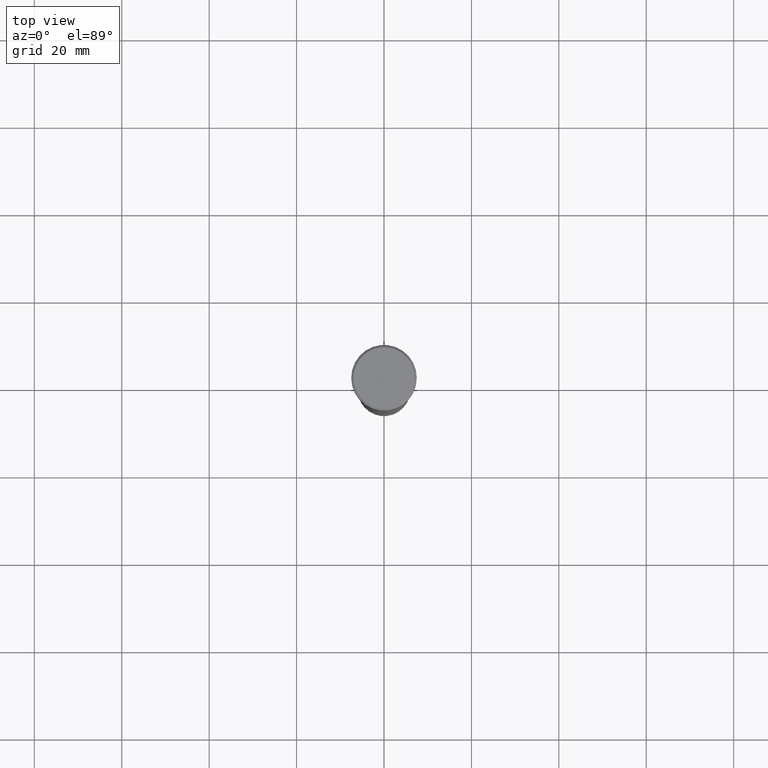
[diagram: clean part render]
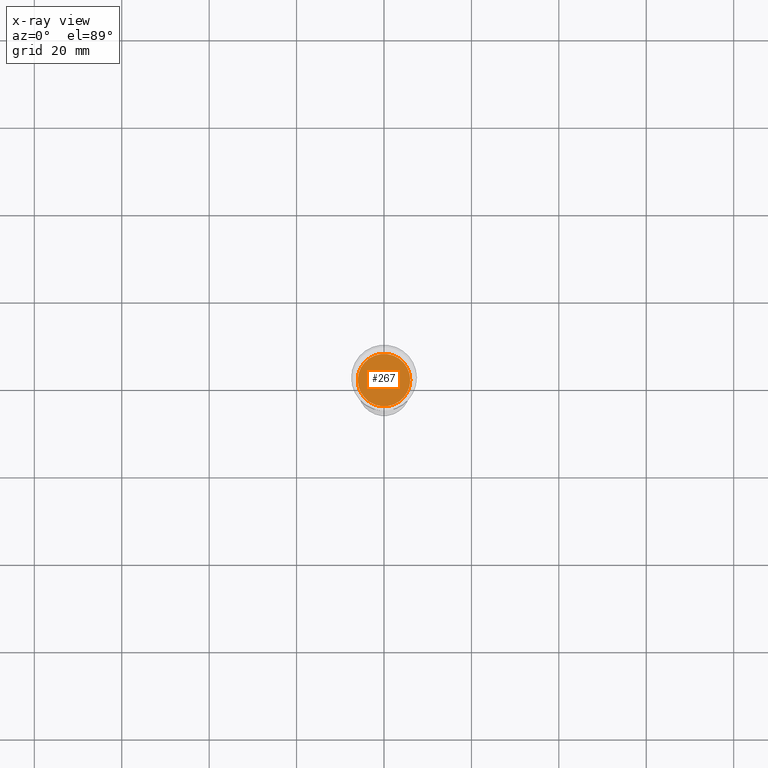
[diagram: x-ray — body ghosted, one internal face saturated and labeled with its STEP entity id]
A machine part, top view, then the same camera in x-ray: the body is ghosted and one INTERNAL B-rep face — a face not visible from any outside direction — is saturated and labeled: STEP entity #267.
In plain terms, the highlighted planar face has unit normal (0, 0, -1).
Its self-contained STEP definition (entity closure, byte-faithful):
#245 = AXIS2_PLACEMENT_3D ( 'NONE', #375, #706, #1087 ) ;
#267 = ADVANCED_FACE ( 'NONE', ( #974 ), #457, .T. ) ;
#300 = DIRECTION ( 'NONE',  ( 0.000000000000000000, 0.000000000000000000, -1.000000000000000000 ) ) ;
#375 = CARTESIAN_POINT ( 'NONE',  ( 0.000000000000000000, 0.000000000000000000, -33.00000000000000000 ) ) ;
#393 = EDGE_CURVE ( 'NONE', #682, #986, #571, .T. ) ;
#414 = EDGE_CURVE ( 'NONE', #986, #682, #704, .T. ) ;
#457 = PLANE ( 'NONE',  #245 ) ;
#571 = CIRCLE ( 'NONE', #624, 6.000000000000000888 ) ;
#624 = AXIS2_PLACEMENT_3D ( 'NONE', #1111, #300, #820 ) ;
#628 = AXIS2_PLACEMENT_3D ( 'NONE', #735, #1096, #861 ) ;
#630 = CARTESIAN_POINT ( 'NONE',  ( -6.000000000000000888, 7.347880794884120722E-16, -33.00000000000000000 ) ) ;
#645 = ORIENTED_EDGE ( 'NONE', *, *, #414, .T. ) ;
#682 = VERTEX_POINT ( 'NONE', #859 ) ;
#704 = CIRCLE ( 'NONE', #628, 6.000000000000000888 ) ;
#706 = DIRECTION ( 'NONE',  ( 0.000000000000000000, 0.000000000000000000, -1.000000000000000000 ) ) ;
#735 = CARTESIAN_POINT ( 'NONE',  ( 0.000000000000000000, 0.000000000000000000, -33.00000000000000000 ) ) ;
#795 = ORIENTED_EDGE ( 'NONE', *, *, #393, .T. ) ;
#820 = DIRECTION ( 'NONE',  ( -1.000000000000000000, 0.000000000000000000, 0.000000000000000000 ) ) ;
#859 = CARTESIAN_POINT ( 'NONE',  ( 6.000000000000000888, 0.000000000000000000, -33.00000000000000000 ) ) ;
#861 = DIRECTION ( 'NONE',  ( -1.000000000000000000, 0.000000000000000000, 0.000000000000000000 ) ) ;
#944 = EDGE_LOOP ( 'NONE', ( #795, #645 ) ) ;
#974 = FACE_OUTER_BOUND ( 'NONE', #944, .T. ) ;
#986 = VERTEX_POINT ( 'NONE', #630 ) ;
#1087 = DIRECTION ( 'NONE',  ( -1.000000000000000000, 0.000000000000000000, -0.000000000000000000 ) ) ;
#1096 = DIRECTION ( 'NONE',  ( 0.000000000000000000, 0.000000000000000000, -1.000000000000000000 ) ) ;
#1111 = CARTESIAN_POINT ( 'NONE',  ( 0.000000000000000000, 0.000000000000000000, -33.00000000000000000 ) ) ;